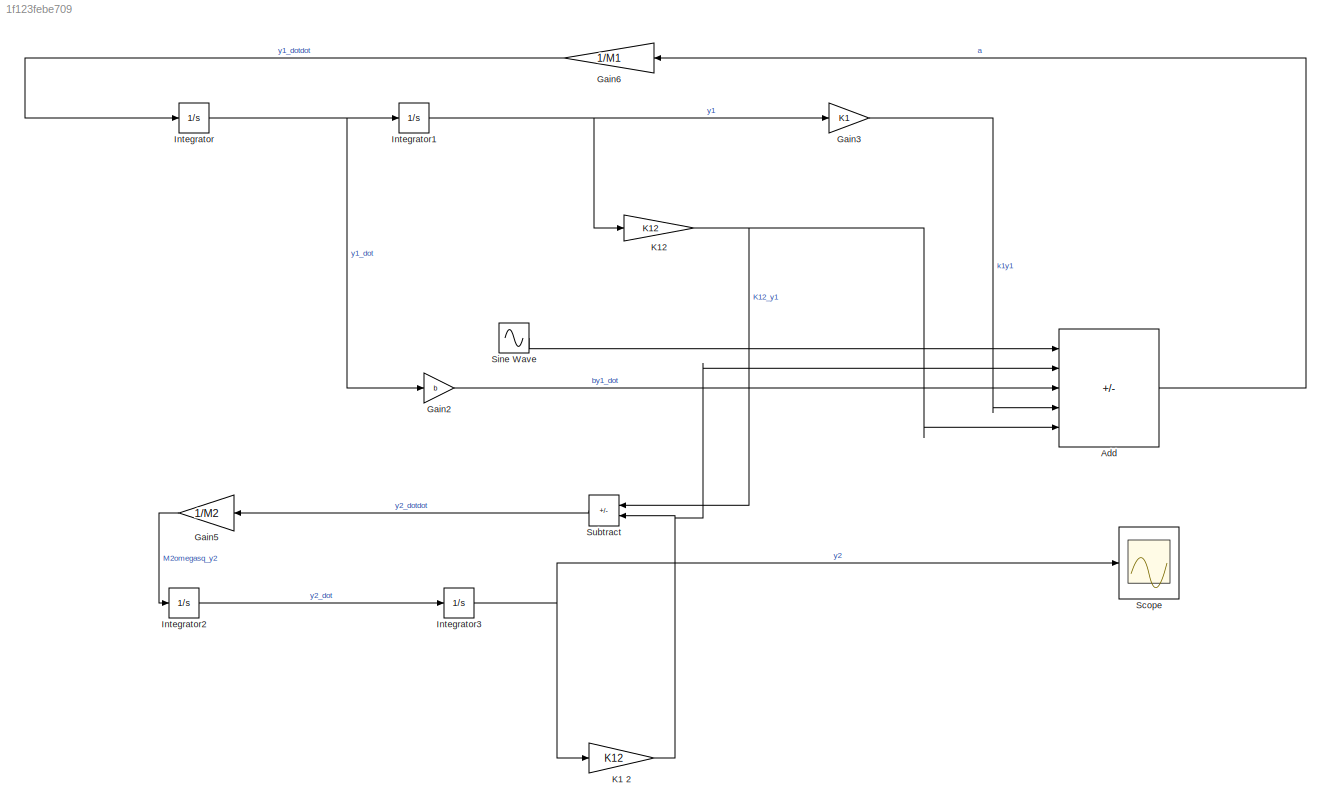
MODEL slx_1f123febe709
KIND model
CONFIG AbsTol = auto
CONFIG EnableMultiTasking = off
CONFIG FixedStep = auto
CONFIG MaxStep = 0.01
CONFIG MinStep = auto
CONFIG RelTol = 1e-3
CONFIG SampleTimeConstraint = Unconstrained
CONFIG SolverName = VariableStepAuto
CONFIG StartTime = 0.0
CONFIG StopTime = 100.0
WORKSPACE source: mxarray member
WORKSPACE K1: Simulink.Parameter (value not decoded)
WORKSPACE K12: Simulink.Parameter (value not decoded)
WORKSPACE M1: Simulink.Parameter (value not decoded)
WORKSPACE M2: Simulink.Parameter (value not decoded)
WORKSPACE b: Simulink.Parameter (value not decoded)
WORKSPACE omega: Simulink.Parameter (value not decoded)
BLOCK [Sum] Add
  IconShape = rectangular
  Inputs = ++---
  Ports = [5, 1]
BLOCK [Gain] Gain2
  Gain = b
BLOCK [Gain] Gain3
  Gain = K1
BLOCK [Gain] Gain5
  Gain = 1/M2
  NameLocation = top
BLOCK [Gain] Gain6
  Gain = 1/M1
BLOCK [Integrator] Integrator
  Ports = [1, 1]
BLOCK [Integrator] Integrator1
  Ports = [1, 1]
BLOCK [Integrator] Integrator2
  Ports = [1, 1]
BLOCK [Integrator] Integrator3
  Ports = [1, 1]
BLOCK [Gain] K1 2
  Gain = K12
BLOCK [Gain] K12
  Gain = K12
BLOCK [Scope] Scope
  Floating = off
  NumInputPorts = 1
  Ports = [1]
  ScopeSpecificationString = Simulink.scopes.TimeScopeBlockCfg('CurrentConfiguration', extmgr.ConfigurationSet(extmgr.Configuration('Core','General UI',true),extmgr.Configuration('Core','Source UI',true),extmgr.Configuration('Sources','WiredSimulink',true),extmgr.Configuration('Visuals','Time Domain',true,'SerializedDisplays',{struct('MinYLimReal','-0.00248','MaxYLimReal','0.0035','YLabelReal','','MinYLimMag','0.00000','MaxYL...<+2145ch>
BLOCK [Sin] Sine Wave
  Amplitude = 2
  Frequency = 10
  Ports = [0, 1]
  SampleTime = 0
BLOCK [Sum] Subtract
  IconShape = rectangular
  Inputs = +-
  Ports = [2, 1]
LINE Add:1 -> Gain6:1
LINE Gain2:1 -> Add:3
LINE Gain3:1 -> Add:4
LINE Gain5:1 -> Integrator2:1
LINE Gain6:1 -> Integrator:1
NET Integrator1:1 -> Gain3:1, K12:1
LINE Integrator2:1 -> Integrator3:1
NET Integrator3:1 -> K1 2:1, Scope:1
NET Integrator:1 -> Gain2:1, Integrator1:1
NET K1 2:1 -> Add:2, Subtract:2
NET K12:1 -> Add:5, Subtract:1
LINE Sine Wave:1 -> Add:1
LINE Subtract:1 -> Gain5:1
note: NET lines group one-source signal fan-out (src -> all destinations, sorted); 1:1 wires keep LINE
